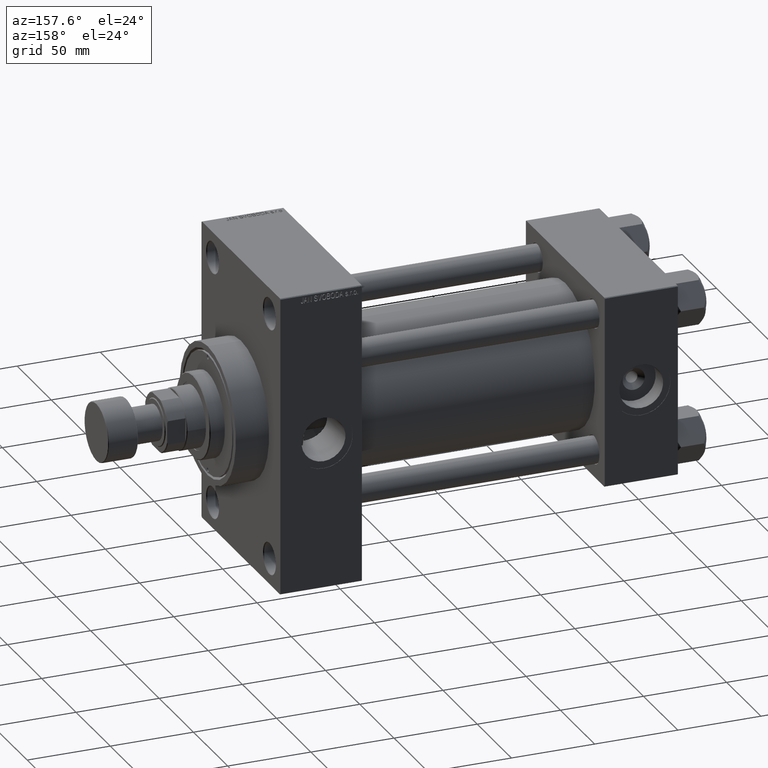
[diagram: clean part render]
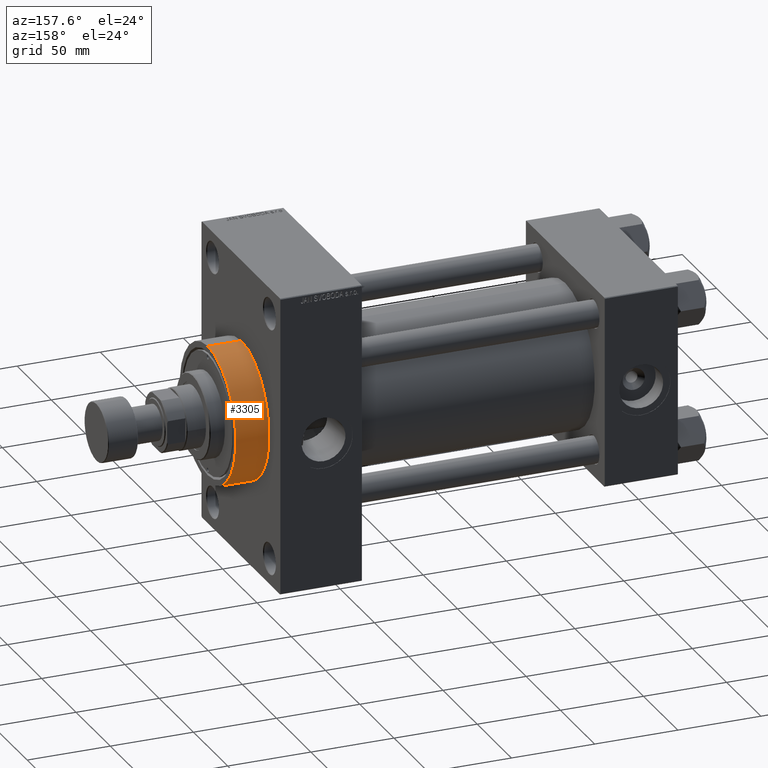
[diagram: same view with one face highlighted and labeled with its STEP entity id]
A machine part, auxiliary view. The second image highlights one B-rep face of the part: STEP entity #3305.
In plain terms, the highlighted cylindrical surface (partial cylindrical patch) has radius 41 mm, axis along (-1, -0, -0).
Its self-contained STEP definition (entity closure, byte-faithful):
#369 = CIRCLE ( 'NONE', #27730, 41.00000000000000000 ) ;
#993 = CARTESIAN_POINT ( 'NONE',  ( 239.0000000000000000, 5.021051876504148963E-15, -41.00000000000000000 ) ) ;
#1096 = VERTEX_POINT ( 'NONE', #30053 ) ;
#2539 = CARTESIAN_POINT ( 'NONE',  ( 239.0000000000000000, 0.000000000000000000, 0.000000000000000000 ) ) ;
#3305 = ADVANCED_FACE ( 'NONE', ( #36536 ), #37246, .T. ) ;
#5381 = ORIENTED_EDGE ( 'NONE', *, *, #23591, .F. ) ;
#7754 = AXIS2_PLACEMENT_3D ( 'NONE', #44806, #37011, #10838 ) ;
#8931 = EDGE_CURVE ( 'NONE', #22781, #46712, #37500, .T. ) ;
#9055 = CARTESIAN_POINT ( 'NONE',  ( 259.0000000000000000, 5.021051876504148963E-15, -41.00000000000000000 ) ) ;
#10451 = CARTESIAN_POINT ( 'NONE',  ( 259.0000000000000000, 0.000000000000000000, 41.00000000000000000 ) ) ;
#10838 = DIRECTION ( 'NONE',  ( 0.000000000000000000, 0.000000000000000000, 1.000000000000000000 ) ) ;
#14513 = ORIENTED_EDGE ( 'NONE', *, *, #45934, .T. ) ;
#16626 = LINE ( 'NONE', #9055, #39337 ) ;
#17451 = DIRECTION ( 'NONE',  ( 0.000000000000000000, 0.000000000000000000, -1.000000000000000000 ) ) ;
#18436 = ORIENTED_EDGE ( 'NONE', *, *, #29860, .F. ) ;
#22781 = VERTEX_POINT ( 'NONE', #993 ) ;
#23591 = EDGE_CURVE ( 'NONE', #1096, #43886, #369, .T. ) ;
#27730 = AXIS2_PLACEMENT_3D ( 'NONE', #32826, #32348, #28909 ) ;
#28909 = DIRECTION ( 'NONE',  ( 0.000000000000000000, 0.000000000000000000, -1.000000000000000000 ) ) ;
#29860 = EDGE_CURVE ( 'NONE', #43886, #46712, #47339, .T. ) ;
#30053 = CARTESIAN_POINT ( 'NONE',  ( 259.0000000000000000, 5.021051876504148963E-15, -41.00000000000000000 ) ) ;
#30264 = VECTOR ( 'NONE', #31721, 1000.000000000000000 ) ;
#31721 = DIRECTION ( 'NONE',  ( -1.000000000000000000, -0.000000000000000000, -0.000000000000000000 ) ) ;
#31962 = CARTESIAN_POINT ( 'NONE',  ( 259.0000000000000000, 0.000000000000000000, 41.00000000000000000 ) ) ;
#32023 = AXIS2_PLACEMENT_3D ( 'NONE', #2539, #35590, #17451 ) ;
#32348 = DIRECTION ( 'NONE',  ( 1.000000000000000000, 0.000000000000000000, 0.000000000000000000 ) ) ;
#32826 = CARTESIAN_POINT ( 'NONE',  ( 259.0000000000000000, 0.000000000000000000, 0.000000000000000000 ) ) ;
#35590 = DIRECTION ( 'NONE',  ( 1.000000000000000000, 0.000000000000000000, 0.000000000000000000 ) ) ;
#36536 = FACE_OUTER_BOUND ( 'NONE', #38324, .T. ) ;
#37011 = DIRECTION ( 'NONE',  ( -1.000000000000000000, -0.000000000000000000, -0.000000000000000000 ) ) ;
#37246 = CYLINDRICAL_SURFACE ( 'NONE', #7754, 41.00000000000000000 ) ;
#37500 = CIRCLE ( 'NONE', #32023, 41.00000000000000000 ) ;
#38324 = EDGE_LOOP ( 'NONE', ( #5381, #14513, #43243, #18436 ) ) ;
#39337 = VECTOR ( 'NONE', #46457, 1000.000000000000000 ) ;
#43243 = ORIENTED_EDGE ( 'NONE', *, *, #8931, .T. ) ;
#43886 = VERTEX_POINT ( 'NONE', #10451 ) ;
#44029 = CARTESIAN_POINT ( 'NONE',  ( 239.0000000000000000, 0.000000000000000000, 41.00000000000000000 ) ) ;
#44806 = CARTESIAN_POINT ( 'NONE',  ( 259.0000000000000000, 0.000000000000000000, 0.000000000000000000 ) ) ;
#45934 = EDGE_CURVE ( 'NONE', #1096, #22781, #16626, .T. ) ;
#46457 = DIRECTION ( 'NONE',  ( -1.000000000000000000, -0.000000000000000000, -0.000000000000000000 ) ) ;
#46712 = VERTEX_POINT ( 'NONE', #44029 ) ;
#47339 = LINE ( 'NONE', #31962, #30264 ) ;